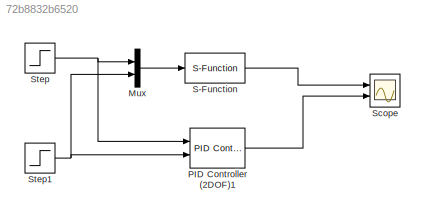
MODEL slx_72b8832b6520
KIND model
CONFIG AbsTol = auto
CONFIG FixedStep = auto
CONFIG MaxStep = auto
CONFIG MinStep = auto
CONFIG RelTol = 1e-3
CONFIG SampleTimeConstraint = Unconstrained
CONFIG Solver = VariableStepAuto
CONFIG SolverMode = Auto
CONFIG SolverName = VariableStepAuto
CONFIG StartTime = 0.0
CONFIG StopTime = 15.0
BLOCK [Mux] Mux
  DisplayOption = bar
  Inputs = 2
  Ports = [2, 1]
BLOCK [Reference] PID Controller (2DOF)1  REF=simulink/Continuous/PID Controller (2DOF)
  Ports = [2, 1]
  SourceBlock = simulink/Continuous/PID Controller (2DOF)
  SourceType = PID 2dof
BLOCK [S-Function] S-Function
  EnableBusSupport = off
  FunctionName = pid_sfun
  Parameters = 1.0, 1.0, 1.0, 0.1, 1.0
  Ports = [1, 1]
  SFunctionDeploymentMode = off
BLOCK [Scope] Scope
  NumInputPorts = 2
  Ports = [2]
  ScopeSpecificationString = Simulink.scopes.TimeScopeBlockCfg('CurrentConfiguration', extmgr.ConfigurationSet(extmgr.Configuration('Core','General UI',true),extmgr.Configuration('Core','Source UI',true),extmgr.Configuration('Sources','WiredSimulink',true),extmgr.Configuration('Visuals','Time Domain',true,'SerializedDisplays',{struct('MinYLimReal','-0.7375','MaxYLimReal','6.6375','YLabelReal','','MinYLimMag','0.00000','MaxYLi...<+1375ch>
BLOCK [Step] Step
  SampleTime = 0
BLOCK [Step] Step1
  SampleTime = 0
  Time = 6
LINE Mux:1 -> S-Function:1
LINE PID Controller (2DOF)1:1 -> Scope:2
LINE S-Function:1 -> Scope:1
NET Step1:1 -> Mux:2, PID Controller (2DOF)1:2
NET Step:1 -> Mux:1, PID Controller (2DOF)1:1
note: NET lines group one-source signal fan-out (src -> all destinations, sorted); 1:1 wires keep LINE
